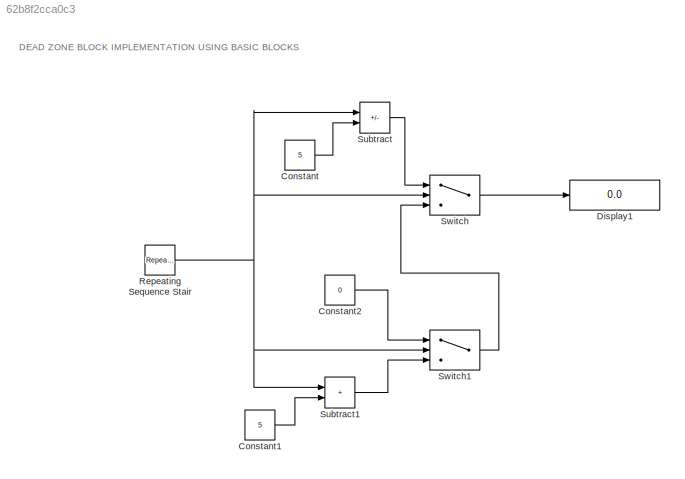
MODEL slx_62b8f2cca0c3
KIND model
CONFIG AbsTol = auto
CONFIG EnableMultiTasking = off
CONFIG FixedStep = 0.1
CONFIG MaxStep = auto
CONFIG MinStep = auto
CONFIG RelTol = 1e-3
CONFIG SampleTimeConstraint = Unconstrained
CONFIG SolverName = FixedStepDiscrete
CONFIG StartTime = 0.0
CONFIG StopTime = 10.0
BLOCK [Constant] Constant
  Value = 5
BLOCK [Constant] Constant1
  Value = 5
BLOCK [Constant] Constant2
  Value = 0
BLOCK [Display] Display1
  Decimation = 1
BLOCK [Reference] Repeating Sequence Stair  REF=simulink/Sources/Repeating
Sequence
Stair
  SourceBlock = simulink/Sources/Repeating\nSequence\nStair
  SourceType = Repeating Sequence Stair
BLOCK [Sum] Subtract
  IconShape = rectangular
  Inputs = +-
BLOCK [Sum] Subtract1
  IconShape = rectangular
BLOCK [Switch] Switch
  Criteria = u2 > Threshold
  InputSameDT = off
  SaturateOnIntegerOverflow = off
  Threshold = 5
BLOCK [Switch] Switch1
  InputSameDT = off
  SaturateOnIntegerOverflow = off
  Threshold = -5
ANNOTATION (root): DEAD ZONE BLOCK IMPLEMENTATION USING BASIC BLOCKS
LINE Constant1:1 -> Subtract1:2
LINE Constant2:1 -> Switch1:1
LINE Constant:1 -> Subtract:2
NET Repeating Sequence Stair:1 -> Subtract1:1, Subtract:1, Switch1:2, Switch:2
LINE Subtract1:1 -> Switch1:3
LINE Subtract:1 -> Switch:1
LINE Switch1:1 -> Switch:3
LINE Switch:1 -> Display1:1
note: NET lines group one-source signal fan-out (src -> all destinations, sorted); 1:1 wires keep LINE
